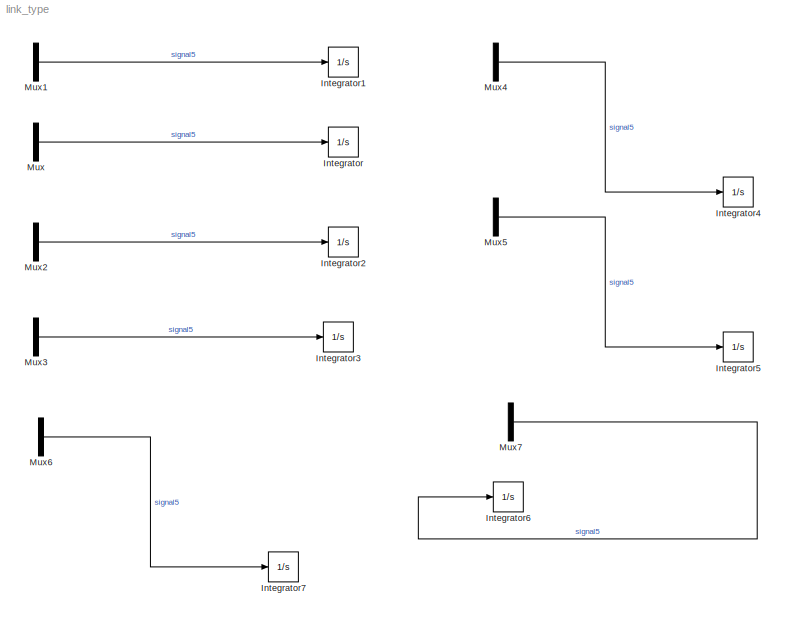
MODEL link_type
KIND model
BLOCK [Integrator] Integrator
  Ports = [1, 1]
  SID = 18
BLOCK [Integrator] Integrator1
  Ports = [1, 1]
  SID = 21
BLOCK [Integrator] Integrator2
  Ports = [1, 1]
  SID = 40
BLOCK [Integrator] Integrator3
  Ports = [1, 1]
  SID = 27
BLOCK [Integrator] Integrator4
  Ports = [1, 1]
  SID = 29
BLOCK [Integrator] Integrator5
  Ports = [1, 1]
  SID = 31
BLOCK [Integrator] Integrator6
  Ports = [1, 1]
  SID = 36
BLOCK [Integrator] Integrator7
  Ports = [1, 1]
  SID = 34
BLOCK [Mux] Mux
  DisplayOption = bar
  Inputs = 2
  Ports = [2, 1]
  SID = 17
BLOCK [Mux] Mux1
  DisplayOption = bar
  Inputs = 2
  Ports = [2, 1]
  SID = 22
BLOCK [Mux] Mux2
  DisplayOption = bar
  Inputs = 2
  Ports = [2, 1]
  SID = 41
BLOCK [Mux] Mux3
  DisplayOption = bar
  Inputs = 2
  Ports = [2, 1]
  SID = 28
BLOCK [Mux] Mux4
  DisplayOption = bar
  Inputs = 2
  Ports = [2, 1]
  SID = 30
BLOCK [Mux] Mux5
  DisplayOption = bar
  Inputs = 2
  Ports = [2, 1]
  SID = 32
BLOCK [Mux] Mux6
  DisplayOption = bar
  Inputs = 2
  Ports = [2, 1]
  SID = 35
BLOCK [Mux] Mux7
  DisplayOption = bar
  Inputs = 2
  Ports = [2, 1]
  SID = 37
LINE Mux1:1 -> Integrator1:1
LINE Mux2:1 -> Integrator2:1
LINE Mux3:1 -> Integrator3:1
LINE Mux4:1 -> Integrator4:1
LINE Mux5:1 -> Integrator5:1
LINE Mux6:1 -> Integrator7:1
LINE Mux7:1 -> Integrator6:1
LINE Mux:1 -> Integrator:1
